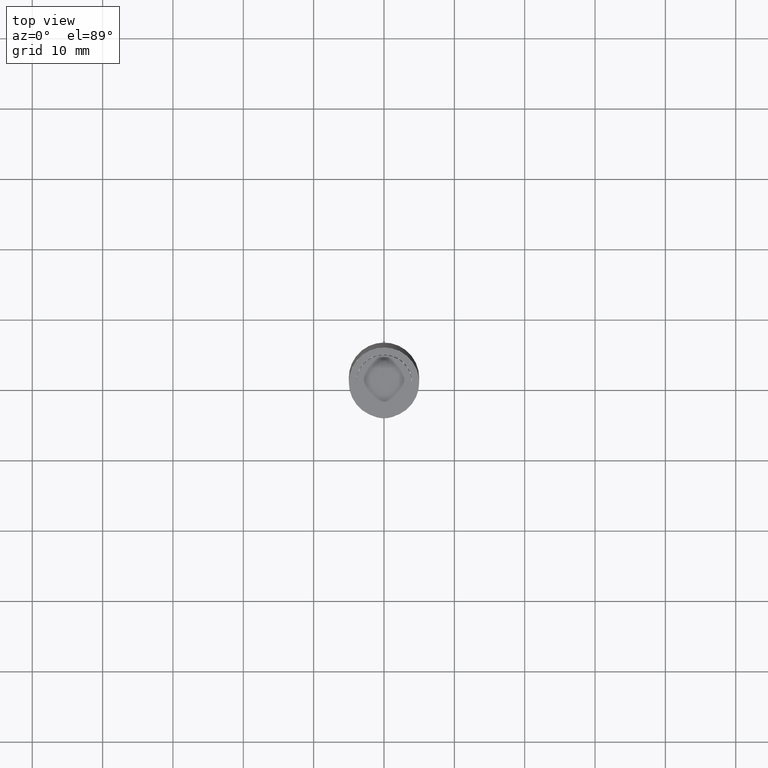
[diagram: clean part render]
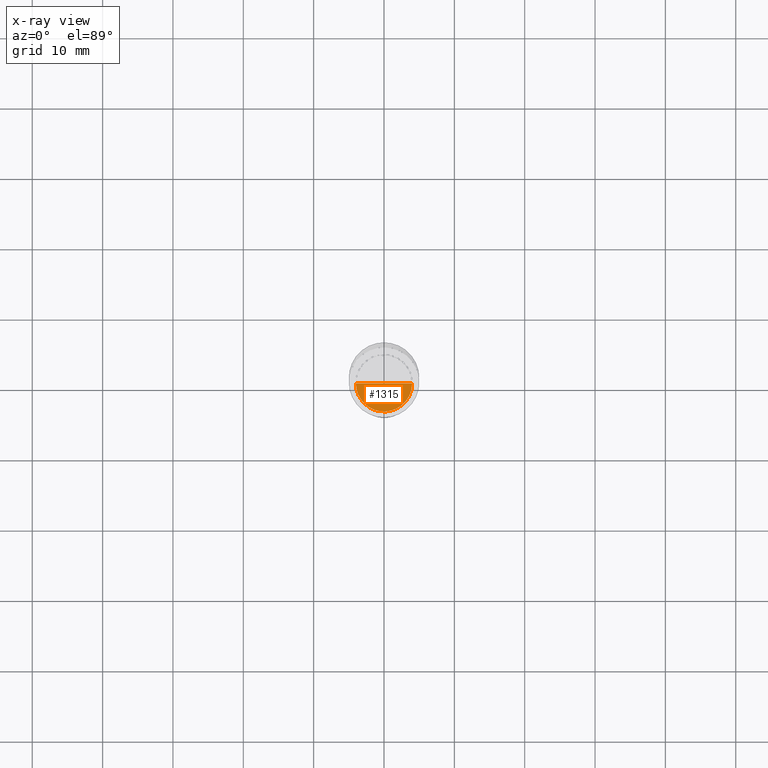
[diagram: x-ray — body ghosted, one internal face saturated and labeled with its STEP entity id]
A machine part, top view, then the same camera in x-ray: the body is ghosted and one INTERNAL B-rep face — a face not visible from any outside direction — is saturated and labeled: STEP entity #1315.
In plain terms, the highlighted face is a freeform B-spline surface patch.
Its self-contained STEP definition (entity closure, byte-faithful):
#1154=CARTESIAN_POINT('',(4.0,0.0,-7.0));
#1158=CARTESIAN_POINT('',(-4.0,0.0,-7.0));
#1159=CARTESIAN_POINT('',(0.0,0.0,-7.0));
#1163=CARTESIAN_POINT('',(-4.0,-4.0,-7.0));
#1164=CARTESIAN_POINT('',(0.0,-4.0,-7.0));
#1165=CARTESIAN_POINT('',(4.0,-4.0,-7.0));
#1300=(
BOUNDED_SURFACE()
B_SPLINE_SURFACE(1,2,(
(#1158,#1163,#1164,#1165,#1154),
(#1159,#1159,#1159,#1159,#1159)
), .UNSPECIFIED.,.F.,.F.,.F.)
B_SPLINE_SURFACE_WITH_KNOTS((2,2),(3,2,3),(
0.0,1.0),(
0.0,0.5,1.0), .UNSPECIFIED.)
GEOMETRIC_REPRESENTATION_ITEM()
RATIONAL_B_SPLINE_SURFACE(((1.0,0.707106781187,1.0,0.707106781187,1.0),
(1.0,0.707106781187,1.0,0.707106781187,1.0)
))
REPRESENTATION_ITEM('')
SURFACE()
);
#1301=(
BOUNDED_CURVE()
B_SPLINE_CURVE(2,(#1154,#1165,#1164,#1163,#1158),.UNSPECIFIED.,.F.,.F.)
B_SPLINE_CURVE_WITH_KNOTS((3,2,3),
(0.0,0.5,1.0),.UNSPECIFIED.)
CURVE()
GEOMETRIC_REPRESENTATION_ITEM()
RATIONAL_B_SPLINE_CURVE((1.0,0.707106781187,1.0,0.707106781187,1.0))
REPRESENTATION_ITEM('')
);
#1302=(
BOUNDED_CURVE()
B_SPLINE_CURVE(1,(#1158,#1159),.UNSPECIFIED.,.F.,.F.)
B_SPLINE_CURVE_WITH_KNOTS((2,2),
(0.0,1.0),.UNSPECIFIED.)
CURVE()
GEOMETRIC_REPRESENTATION_ITEM()
RATIONAL_B_SPLINE_CURVE((1.0,1.0))
REPRESENTATION_ITEM('')
);
#1303=(
BOUNDED_CURVE()
B_SPLINE_CURVE(1,(#1159,#1154),.UNSPECIFIED.,.F.,.F.)
B_SPLINE_CURVE_WITH_KNOTS((2,2),
(0.0,1.0),.UNSPECIFIED.)
CURVE()
GEOMETRIC_REPRESENTATION_ITEM()
RATIONAL_B_SPLINE_CURVE((1.0,1.0))
REPRESENTATION_ITEM('')
);
#1304=VERTEX_POINT('',#1154);
#1305=VERTEX_POINT('',#1158);
#1306=VERTEX_POINT('',#1159);
#1307=EDGE_CURVE('',#1304,#1305,#1301,.T.);
#1308=EDGE_CURVE('',#1305,#1306,#1302,.T.);
#1309=EDGE_CURVE('',#1306,#1304,#1303,.T.);
#1310=ORIENTED_EDGE('',*,*,#1307,.T.);
#1311=ORIENTED_EDGE('',*,*,#1308,.T.);
#1312=ORIENTED_EDGE('',*,*,#1309,.T.);
#1313=EDGE_LOOP('',(#1310,#1311,#1312));
#1314=FACE_OUTER_BOUND('',#1313,.T.);
#1315=ADVANCED_FACE('',(#1314),#1300,.T.);